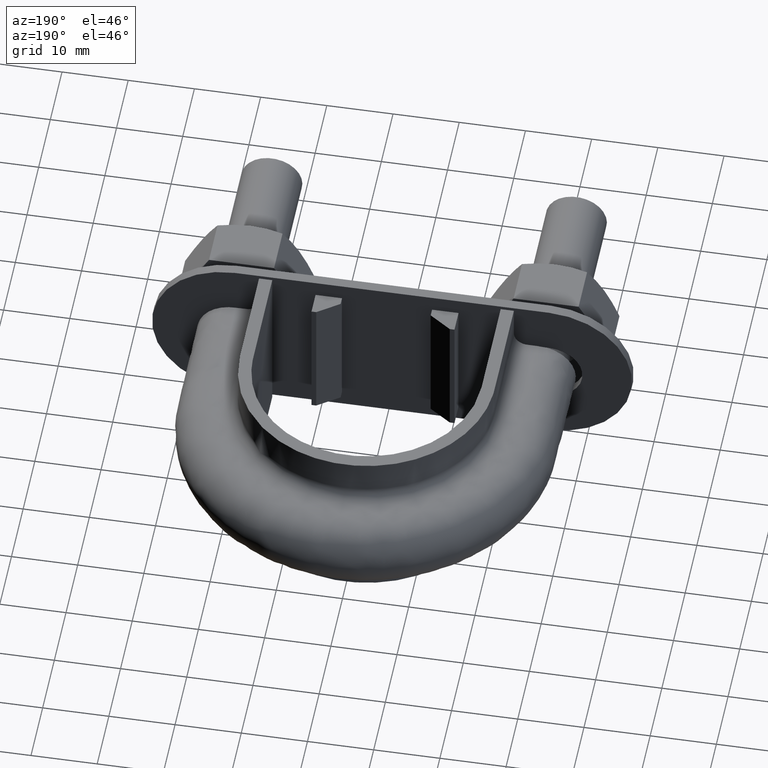
[diagram: clean part render]
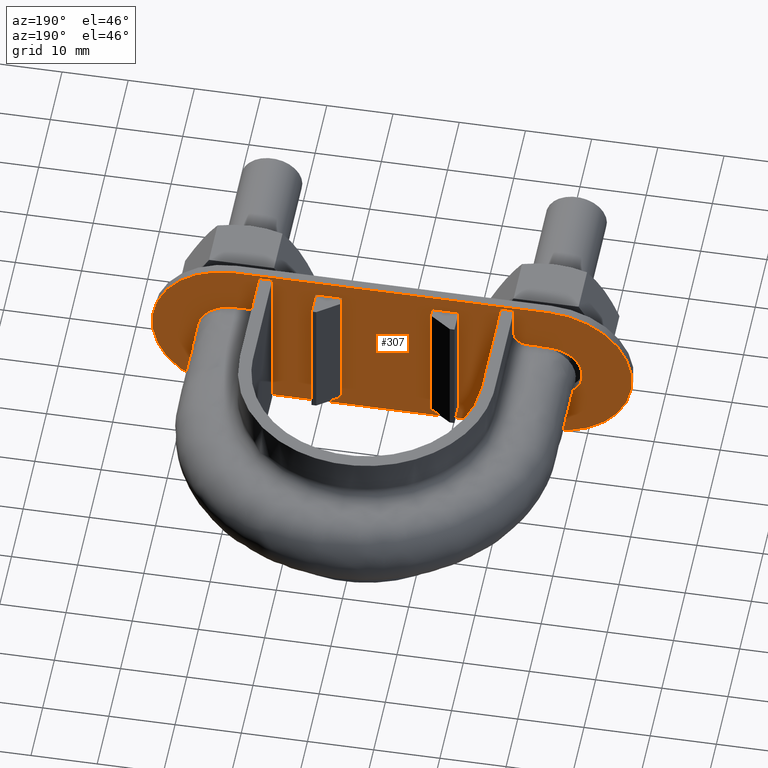
[diagram: same view with one face highlighted and labeled with its STEP entity id]
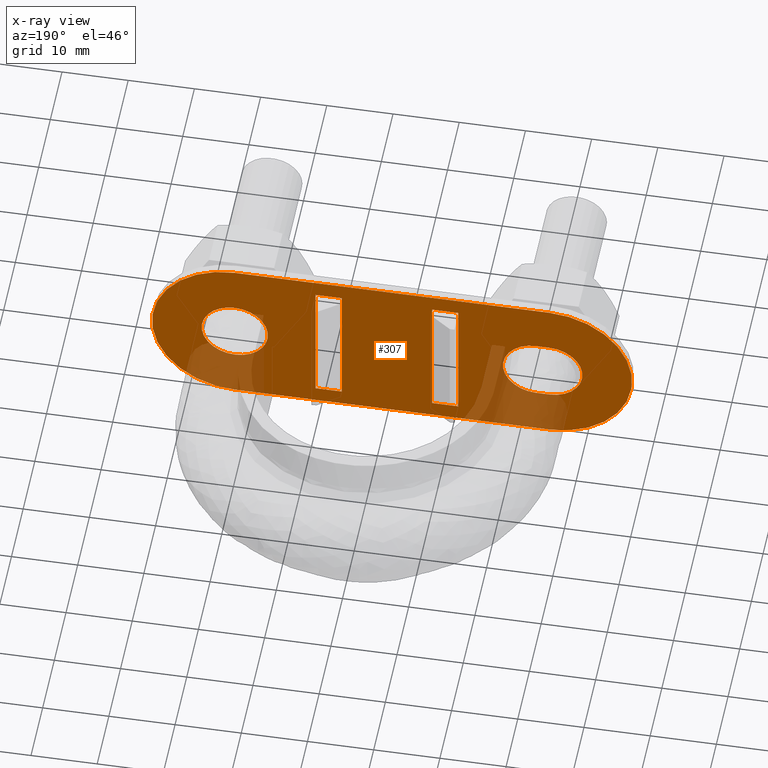
[diagram: x-ray of the same camera — body ghosted, the highlighted face saturated]
A machine part, auxiliary view. The second image highlights one B-rep face of the part: STEP entity #307.
The next image is the same camera in x-ray: the body ghosted, the highlighted face saturated — about 16% of this face is hidden behind the body in this view.
In plain terms, the highlighted planar face has unit normal (-0, 1, -0).
Its self-contained STEP definition (entity closure, byte-faithful):
#307 = ADVANCED_FACE( '', ( #473, #474, #475, #476, #477 ), #478, .T. );
#473 = FACE_OUTER_BOUND( '', #1551, .T. );
#474 = FACE_BOUND( '', #1552, .T. );
#475 = FACE_BOUND( '', #1553, .T. );
#476 = FACE_BOUND( '', #1554, .T. );
#477 = FACE_BOUND( '', #1555, .T. );
#478 = PLANE( '', #1556 );
#1551 = EDGE_LOOP( '', ( #1987, #1988, #1989, #1990 ) );
#1552 = EDGE_LOOP( '', ( #1991, #1992, #1993, #1994 ) );
#1553 = EDGE_LOOP( '', ( #1995 ) );
#1554 = EDGE_LOOP( '', ( #1996, #1997, #1998, #1999 ) );
#1555 = EDGE_LOOP( '', ( #2000, #2001, #2002, #2003 ) );
#1556 = AXIS2_PLACEMENT_3D( '', #2004, #2005, #2006 );
#1987 = ORIENTED_EDGE( '', *, *, #2607, .T. );
#1988 = ORIENTED_EDGE( '', *, *, #2582, .T. );
#1989 = ORIENTED_EDGE( '', *, *, #2608, .T. );
#1990 = ORIENTED_EDGE( '', *, *, #2609, .T. );
#1991 = ORIENTED_EDGE( '', *, *, #2610, .T. );
#1992 = ORIENTED_EDGE( '', *, *, #2611, .T. );
#1993 = ORIENTED_EDGE( '', *, *, #2612, .F. );
#1994 = ORIENTED_EDGE( '', *, *, #2613, .F. );
#1995 = ORIENTED_EDGE( '', *, *, #2614, .F. );
#1996 = ORIENTED_EDGE( '', *, *, #2615, .F. );
#1997 = ORIENTED_EDGE( '', *, *, #2616, .F. );
#1998 = ORIENTED_EDGE( '', *, *, #2617, .F. );
#1999 = ORIENTED_EDGE( '', *, *, #2618, .F. );
#2000 = ORIENTED_EDGE( '', *, *, #2604, .F. );
#2001 = ORIENTED_EDGE( '', *, *, #2605, .T. );
#2002 = ORIENTED_EDGE( '', *, *, #2597, .T. );
#2003 = ORIENTED_EDGE( '', *, *, #2592, .F. );
#2004 = CARTESIAN_POINT( '', ( -24.5000000000000, 31.7999999999996, 2.04651491268691E-009 ) );
#2005 = DIRECTION( '', ( -4.20547034348165E-042, 1.00000000000000, -1.57436294250947E-014 ) );
#2006 = DIRECTION( '', ( 1.00000000000000, 0.000000000000000, -2.67122035836178E-028 ) );
#2582 = EDGE_CURVE( '', #2863, #2864, #2865, .T. );
#2592 = EDGE_CURVE( '', #2879, #2880, #2881, .T. );
#2597 = EDGE_CURVE( '', #2889, #2880, #2890, .T. );
#2604 = EDGE_CURVE( '', #2899, #2879, #2901, .T. );
#2605 = EDGE_CURVE( '', #2899, #2889, #2902, .T. );
#2607 = EDGE_CURVE( '', #2904, #2863, #2905, .T. );
#2608 = EDGE_CURVE( '', #2864, #2906, #2907, .T. );
#2609 = EDGE_CURVE( '', #2906, #2904, #2908, .T. );
#2610 = EDGE_CURVE( '', #2909, #2910, #2911, .T. );
#2611 = EDGE_CURVE( '', #2910, #2912, #2913, .T. );
#2612 = EDGE_CURVE( '', #2914, #2912, #2915, .T. );
#2613 = EDGE_CURVE( '', #2909, #2914, #2916, .T. );
#2614 = EDGE_CURVE( '', #2917, #2917, #2918, .T. );
#2615 = EDGE_CURVE( '', #2919, #2920, #2921, .T. );
#2616 = EDGE_CURVE( '', #2922, #2919, #2923, .T. );
#2617 = EDGE_CURVE( '', #2924, #2922, #2925, .T. );
#2618 = EDGE_CURVE( '', #2920, #2924, #2926, .T. );
#2863 = VERTEX_POINT( '', #3453 );
#2864 = VERTEX_POINT( '', #3454 );
#2865 = LINE( '', #3455, #3456 );
#2879 = VERTEX_POINT( '', #3479 );
#2880 = VERTEX_POINT( '', #3480 );
#2881 = LINE( '', #3481, #3482 );
#2889 = VERTEX_POINT( '', #3494 );
#2890 = LINE( '', #3495, #3496 );
#2899 = VERTEX_POINT( '', #3510 );
#2901 = LINE( '', #3513, #3514 );
#2902 = LINE( '', #3515, #3516 );
#2904 = VERTEX_POINT( '', #3519 );
#2905 = CIRCLE( '', #3520, 12.5000000000000 );
#2906 = VERTEX_POINT( '', #3521 );
#2907 = CIRCLE( '', #3522, 12.5000000000000 );
#2908 = LINE( '', #3523, #3524 );
#2909 = VERTEX_POINT( '', #3525 );
#2910 = VERTEX_POINT( '', #3526 );
#2911 = LINE( '', #3527, #3528 );
#2912 = VERTEX_POINT( '', #3529 );
#2913 = LINE( '', #3530, #3531 );
#2914 = VERTEX_POINT( '', #3532 );
#2915 = LINE( '', #3533, #3534 );
#2916 = LINE( '', #3535, #3536 );
#2917 = VERTEX_POINT( '', #3537 );
#2918 = CIRCLE( '', #3538, 5.00000000000000 );
#2919 = VERTEX_POINT( '', #3539 );
#2920 = VERTEX_POINT( '', #3540 );
#2921 = CIRCLE( '', #3541, 5.00000000000000 );
#2922 = VERTEX_POINT( '', #3542 );
#2923 = LINE( '', #3543, #3544 );
#2924 = VERTEX_POINT( '', #3545 );
#2925 = CIRCLE( '', #3546, 5.00000000000000 );
#2926 = LINE( '', #3547, #3548 );
#3453 = CARTESIAN_POINT( '', ( -24.4999999994779, 31.7999999999998, 12.5000000020465 ) );
#3454 = CARTESIAN_POINT( '', ( 23.0000000005221, 31.7999999999998, 12.5000000000626 ) );
#3455 = CARTESIAN_POINT( '', ( -24.5000000000000, 31.7999999999998, 12.5000000020465 ) );
#3456 = VECTOR( '', #4036, 1000.00000000000 );
#3479 = CARTESIAN_POINT( '', ( 6.80000000083531, 31.7999999999998, 9.99999999909788 ) );
#3480 = CARTESIAN_POINT( '', ( 10.8000000008353, 31.7999999999998, 9.99999999909788 ) );
#3481 = CARTESIAN_POINT( '', ( 10.8000000008353, 31.7999999999998, 9.99999999909788 ) );
#3482 = VECTOR( '', #4046, 1000.00000000000 );
#3494 = CARTESIAN_POINT( '', ( 10.7999999991647, 31.7999999999994, -10.0000000009021 ) );
#3495 = CARTESIAN_POINT( '', ( 10.8000000000000, 31.7999999999996, -9.02120459484498E-010 ) );
#3496 = VECTOR( '', #4051, 1000.00000000000 );
#3510 = CARTESIAN_POINT( '', ( 6.79999999916470, 31.7999999999994, -10.0000000009021 ) );
#3513 = CARTESIAN_POINT( '', ( 6.79999999916470, 31.7999999999994, -10.0000000005680 ) );
#3514 = VECTOR( '', #4058, 1000.00000000000 );
#3515 = CARTESIAN_POINT( '', ( -24.5000000000000, 31.7999999999994, -10.0000000009021 ) );
#3516 = VECTOR( '', #4059, 1000.00000000000 );
#3519 = CARTESIAN_POINT( '', ( -24.5000000010441, 31.7999999999994, -12.4999999979535 ) );
#3520 = AXIS2_PLACEMENT_3D( '', #4061, #4062, #4063 );
#3521 = CARTESIAN_POINT( '', ( 22.9999999989559, 31.7999999999994, -12.5000000019212 ) );
#3522 = AXIS2_PLACEMENT_3D( '', #4064, #4065, #4066 );
#3523 = CARTESIAN_POINT( '', ( -24.5000000010441, 31.7999999999994, -12.4999999979535 ) );
#3524 = VECTOR( '', #4067, 1000.00000000000 );
#3525 = CARTESIAN_POINT( '', ( -10.8000000008352, 31.7999999999994, -9.99999999909785 ) );
#3526 = CARTESIAN_POINT( '', ( -6.80000000083529, 31.7999999999994, -9.99999999943198 ) );
#3527 = CARTESIAN_POINT( '', ( -24.5000000008353, 31.7999999999994, -9.99999999795348 ) );
#3528 = VECTOR( '', #4068, 1000.00000000000 );
#3529 = CARTESIAN_POINT( '', ( -6.79999999916468, 31.7999999999998, 10.0000000005680 ) );
#3530 = CARTESIAN_POINT( '', ( -6.79999999999998, 31.7999999999996, 5.68020689246854E-010 ) );
#3531 = VECTOR( '', #4069, 1000.00000000000 );
#3532 = CARTESIAN_POINT( '', ( -10.7999999991646, 31.7999999999998, 10.0000000009022 ) );
#3533 = CARTESIAN_POINT( '', ( -10.7999999991647, 31.7999999999998, 10.0000000009022 ) );
#3534 = VECTOR( '', #4070, 1000.00000000000 );
#3535 = CARTESIAN_POINT( '', ( -10.8000000008352, 31.7999999999994, -9.99999999909785 ) );
#3536 = VECTOR( '', #4071, 1000.00000000000 );
#3537 = CARTESIAN_POINT( '', ( 23.0000000000000, 31.7999999999997, 4.99999999807880 ) );
#3538 = AXIS2_PLACEMENT_3D( '', #4072, #4073, #4074 );
#3539 = CARTESIAN_POINT( '', ( -24.5000000004176, 31.7999999999995, -4.99999999795348 ) );
#3540 = CARTESIAN_POINT( '', ( -24.4999999997912, 31.7999999999997, 5.00000000196299 ) );
#3541 = AXIS2_PLACEMENT_3D( '', #4075, #4076, #4077 );
#3542 = CARTESIAN_POINT( '', ( -22.5000000004176, 31.7999999999995, -4.99999999812054 ) );
#3543 = CARTESIAN_POINT( '', ( -24.5000000004176, 31.7999999999995, -4.99999999795348 ) );
#3544 = VECTOR( '', #4078, 1000.00000000000 );
#3545 = CARTESIAN_POINT( '', ( -22.4999999997912, 31.7999999999997, 5.00000000187946 ) );
#3546 = AXIS2_PLACEMENT_3D( '', #4079, #4080, #4081 );
#3547 = CARTESIAN_POINT( '', ( -22.4999999995823, 31.7999999999997, 5.00000000187946 ) );
#3548 = VECTOR( '', #4082, 1000.00000000000 );
#4036 = DIRECTION( '', ( 1.00000000000000, -2.67122035856882E-028, -1.31507931366257E-024 ) );
#4046 = DIRECTION( '', ( 1.00000000000000, -2.67122035857174E-028, -1.33363282513029E-024 ) );
#4051 = DIRECTION( '', ( 8.35307470870087E-011, 1.57436294250947E-014, 1.00000000000000 ) );
#4058 = DIRECTION( '', ( 8.35307470870087E-011, 1.57436294250947E-014, 1.00000000000000 ) );
#4059 = DIRECTION( '', ( 1.00000000000000, -2.67122035857174E-028, -1.33363282513029E-024 ) );
#4061 = CARTESIAN_POINT( '', ( -24.5000000000000, 31.7999999999996, 2.04651491268691E-009 ) );
#4062 = DIRECTION( '', ( 2.67122035836178E-028, 1.00000000000000, -1.57436294250947E-014 ) );
#4063 = DIRECTION( '', ( -8.42888523976828E-058, 1.57436294250947E-014, 1.00000000000000 ) );
#4064 = CARTESIAN_POINT( '', ( 23.0000000000001, 31.7999999999996, -1.92119694082915E-009 ) );
#4065 = DIRECTION( '', ( 2.67122035836178E-028, 1.00000000000000, -1.57436294250947E-014 ) );
#4066 = DIRECTION( '', ( -8.42888523976828E-058, 1.57436294250947E-014, 1.00000000000000 ) );
#4067 = DIRECTION( '', ( -1.00000000000000, 1.31534585275162E-024, 8.35308489044844E-011 ) );
#4068 = DIRECTION( '', ( 1.00000000000000, -1.31534585275162E-024, -8.35308489044844E-011 ) );
#4069 = DIRECTION( '', ( 8.35307470870087E-011, 1.57436294250947E-014, 1.00000000000000 ) );
#4070 = DIRECTION( '', ( 1.00000000000000, -1.31534585275162E-024, -8.35308489044844E-011 ) );
#4071 = DIRECTION( '', ( 8.35307470870087E-011, 1.57436294250947E-014, 1.00000000000000 ) );
#4072 = CARTESIAN_POINT( '', ( 23.0000000000000, 31.7999999999996, -1.92119867555262E-009 ) );
#4073 = DIRECTION( '', ( 2.67122035836178E-028, 1.00000000000000, -1.57436294250947E-014 ) );
#4074 = DIRECTION( '', ( 0.000000000000000, 1.57436294250947E-014, 1.00000000000000 ) );
#4075 = CARTESIAN_POINT( '', ( -24.5000000000000, 31.7999999999996, 2.04651664741039E-009 ) );
#4076 = DIRECTION( '', ( 2.67122035836178E-028, 1.00000000000000, -1.57436294250947E-014 ) );
#4077 = DIRECTION( '', ( 0.000000000000000, 1.57436294250947E-014, 1.00000000000000 ) );
#4078 = DIRECTION( '', ( -1.00000000000000, 1.31534585275162E-024, 8.35308489044844E-011 ) );
#4079 = CARTESIAN_POINT( '', ( -22.5000000000000, 31.7999999999996, 1.87945494960142E-009 ) );
#4080 = DIRECTION( '', ( 2.67122035836178E-028, 1.00000000000000, -1.57436294250947E-014 ) );
#4081 = DIRECTION( '', ( 0.000000000000000, 1.57436294250947E-014, 1.00000000000000 ) );
#4082 = DIRECTION( '', ( 1.00000000000000, -2.67122035856882E-028, -1.31507931366257E-024 ) );